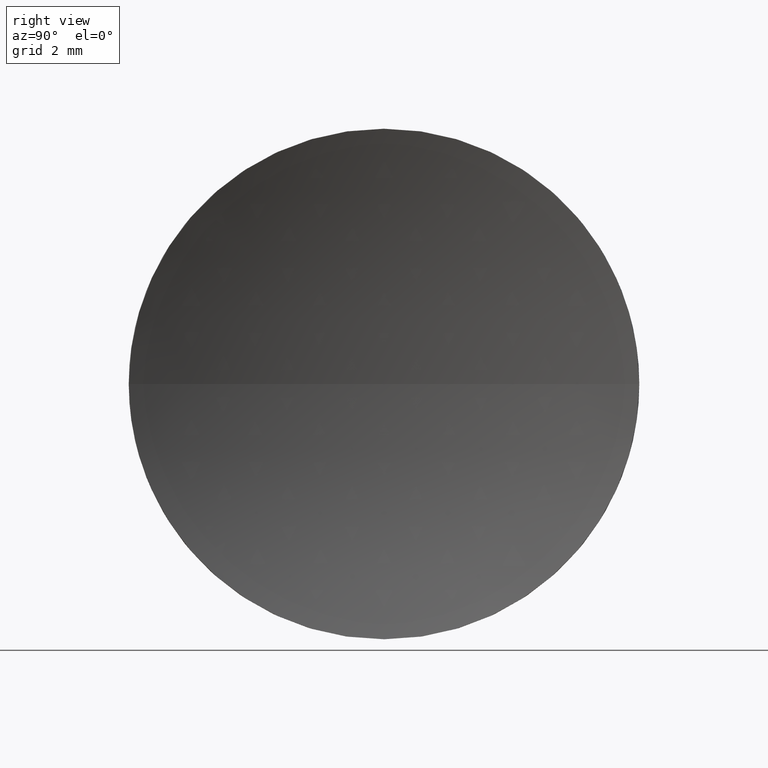
[diagram: clean part render]
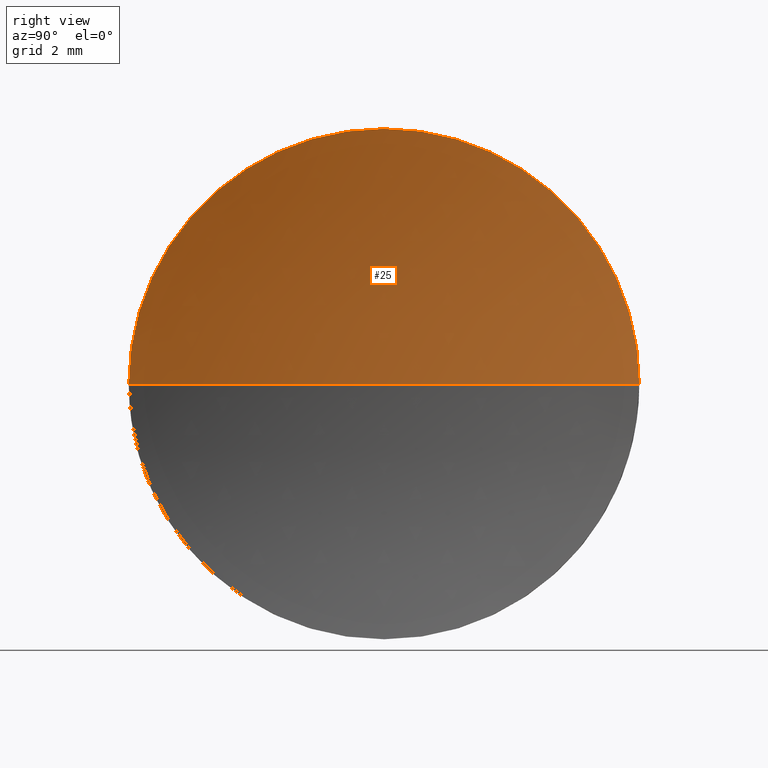
[diagram: same view with one face highlighted and labeled with its STEP entity id]
A machine part, right view. The second image highlights one B-rep face of the part: STEP entity #25.
In plain terms, the highlighted spherical surface has radius 16.2178 mm.
Its self-contained STEP definition (entity closure, byte-faithful):
#4 = EDGE_CURVE ( 'NONE', #98, #154, #177, .T. ) ;
#18 = DIRECTION ( 'NONE',  ( 0.0000000000000000000, -1.224646799147353200E-016, 1.000000000000000000 ) ) ;
#21 = DIRECTION ( 'NONE',  ( -1.000000000000000000, -0.0000000000000000000, -0.0000000000000000000 ) ) ;
#22 = ORIENTED_EDGE ( 'NONE', *, *, #51, .T. ) ;
#24 = CARTESIAN_POINT ( 'NONE',  ( 62.03736885217669100, 26.08904114919495900, 0.0000000000000000000 ) ) ;
#25 = ADVANCED_FACE ( 'NONE', ( #38 ), #31, .F. ) ;
#28 = CARTESIAN_POINT ( 'NONE',  ( 46.60958549791029500, 26.08904114919495900, 0.0000000000000000000 ) ) ;
#30 = DIRECTION ( 'NONE',  ( 0.0000000000000000000, -1.000000000000000000, -1.224646799147353000E-016 ) ) ;
#31 = SPHERICAL_SURFACE ( 'NONE', #131, 16.21778342518420100 ) ;
#35 = VERTEX_POINT ( 'NONE', #78 ) ;
#36 = CARTESIAN_POINT ( 'NONE',  ( 46.60958549791029500, 26.08904114919495900, 0.0000000000000000000 ) ) ;
#38 = FACE_OUTER_BOUND ( 'NONE', #158, .T. ) ;
#39 = AXIS2_PLACEMENT_3D ( 'NONE', #101, #18, #30 ) ;
#42 = ORIENTED_EDGE ( 'NONE', *, *, #176, .F. ) ;
#47 = CARTESIAN_POINT ( 'NONE',  ( 46.60958549791029500, 31.08904114919496600, 6.123233995736773200E-016 ) ) ;
#48 = CIRCLE ( 'NONE', #143, 16.21778342518420100 ) ;
#50 = CARTESIAN_POINT ( 'NONE',  ( 62.03736885217669100, 26.08904114919495900, 0.0000000000000000000 ) ) ;
#51 = EDGE_CURVE ( 'NONE', #118, #35, #48, .T. ) ;
#54 = AXIS2_PLACEMENT_3D ( 'NONE', #28, #122, #99 ) ;
#62 = ORIENTED_EDGE ( 'NONE', *, *, #107, .F. ) ;
#73 = DIRECTION ( 'NONE',  ( 0.0000000000000000000, 0.0000000000000000000, 1.000000000000000000 ) ) ;
#78 = CARTESIAN_POINT ( 'NONE',  ( 45.81958542699248900, 26.08904114919495900, 0.0000000000000000000 ) ) ;
#79 = DIRECTION ( 'NONE',  ( -1.000000000000000000, 0.0000000000000000000, 0.0000000000000000000 ) ) ;
#93 = CARTESIAN_POINT ( 'NONE',  ( 46.60958549791029500, 26.08904114919495900, 5.000000000000000900 ) ) ;
#97 = CIRCLE ( 'NONE', #54, 5.000000000000000900 ) ;
#98 = VERTEX_POINT ( 'NONE', #93 ) ;
#99 = DIRECTION ( 'NONE',  ( 0.0000000000000000000, 0.0000000000000000000, 1.000000000000000000 ) ) ;
#101 = CARTESIAN_POINT ( 'NONE',  ( 62.03736885217669100, 26.08904114919495900, 0.0000000000000000000 ) ) ;
#105 = AXIS2_PLACEMENT_3D ( 'NONE', #36, #21, #124 ) ;
#107 = EDGE_CURVE ( 'NONE', #118, #98, #97, .T. ) ;
#117 = CARTESIAN_POINT ( 'NONE',  ( 46.60958549791029500, 21.08904114919495100, 0.0000000000000000000 ) ) ;
#118 = VERTEX_POINT ( 'NONE', #117 ) ;
#122 = DIRECTION ( 'NONE',  ( -1.000000000000000000, -0.0000000000000000000, -0.0000000000000000000 ) ) ;
#124 = DIRECTION ( 'NONE',  ( 0.0000000000000000000, 0.0000000000000000000, 1.000000000000000000 ) ) ;
#131 = AXIS2_PLACEMENT_3D ( 'NONE', #50, #73, #174 ) ;
#142 = ORIENTED_EDGE ( 'NONE', *, *, #4, .F. ) ;
#143 = AXIS2_PLACEMENT_3D ( 'NONE', #24, #184, #79 ) ;
#149 = CIRCLE ( 'NONE', #39, 16.21778342518420100 ) ;
#154 = VERTEX_POINT ( 'NONE', #47 ) ;
#158 = EDGE_LOOP ( 'NONE', ( #42, #142, #62, #22 ) ) ;
#174 = DIRECTION ( 'NONE',  ( 0.0000000000000000000, -1.000000000000000000, 0.0000000000000000000 ) ) ;
#176 = EDGE_CURVE ( 'NONE', #154, #35, #149, .T. ) ;
#177 = CIRCLE ( 'NONE', #105, 5.000000000000000900 ) ;
#184 = DIRECTION ( 'NONE',  ( 0.0000000000000000000, 0.0000000000000000000, -1.000000000000000000 ) ) ;